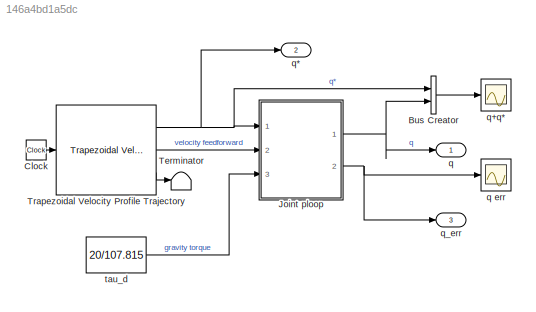
MODEL slx_146a4bd1a5dc
KIND model
CONFIG AbsTol = auto
CONFIG EnableMultiTasking = on
CONFIG FixedStep = auto
CONFIG InitFcn = G = 107.815;
CONFIG MaxStep = auto
CONFIG MinStep = auto
CONFIG PreLoadFcn = G = 107.815;
CONFIG RelTol = 1e-3
CONFIG SampleTimeConstraint = Unconstrained
CONFIG SolverName = ode15s
CONFIG StartTime = 0.0
CONFIG StopTime = 1
BLOCK [BusCreator] Bus Creator
  DisplayOption = bar
  InheritFromInputs = on
  Inputs = 2
  Ports = [2, 1]
BLOCK [Clock] Clock
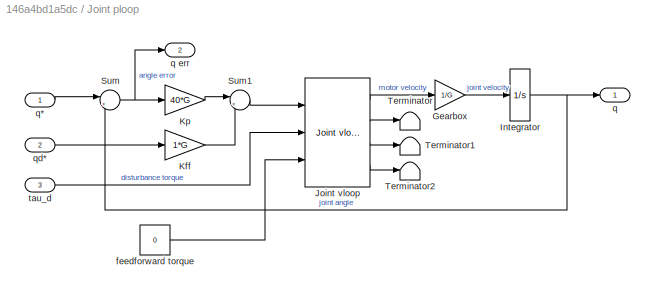
BLOCK [SubSystem] Joint ploop
  Ports = [3, 2]
  RequestExecContextInheritance = off
BLOCK [Gain] Joint ploop/Gearbox
  Gain = 1/G
BLOCK [Integrator] Joint ploop/Integrator
  Ports = [1, 1]
BLOCK [Reference] Joint ploop/Joint vloop  REF=roblocks/Joint vloop  (lib defined in mdl_2a292b13c81b, mdl_69400f8cfe22, +12 more)
  Ports = [3, 4]
  SourceBlock = roblocks/Joint vloop
BLOCK [Gain] Joint ploop/Kff
  Gain = 1*G
BLOCK [Gain] Joint ploop/Kp
  Gain = 40*G
BLOCK [Sum] Joint ploop/Sum
  Inputs = |+-
  Ports = [2, 1]
BLOCK [Sum] Joint ploop/Sum1
  Inputs = |++
  Ports = [2, 1]
BLOCK [Terminator] Joint ploop/Terminator
BLOCK [Terminator] Joint ploop/Terminator1
BLOCK [Terminator] Joint ploop/Terminator2
BLOCK [Constant] Joint ploop/feedforward torque
  Value = 0
BLOCK [Outport] Joint ploop/q
  VectorParamsAs1DForOutWhenUnconnected = off
BLOCK [Outport] Joint ploop/q err
  Port = 2
  VectorParamsAs1DForOutWhenUnconnected = off
BLOCK [Inport] Joint ploop/q*
BLOCK [Inport] Joint ploop/qd*
  Port = 2
BLOCK [Inport] Joint ploop/tau_d
  Port = 3
BLOCK [Terminator] Terminator
BLOCK [Reference] Trapezoidal Velocity Profile Trajectory  REF=robotcorelib/Trapezoidal Velocity Profile Trajectory
  Ports = [1, 3]
  SourceBlock = robotcorelib/Trapezoidal Velocity Profile Trajectory
  SourceProductBaseCode = RO,NV,RR,UV
  SourceType = robotics.slcore.internal.block.TrapVelTrajSys
BLOCK [Outport] q
  VectorParamsAs1DForOutWhenUnconnected = off
BLOCK [Scope] q err
  Floating = off
  NumInputPorts = 1
  Ports = [1]
  ScopeSpecificationString = Simulink.scopes.TimeScopeBlockCfg('CurrentConfiguration', extmgr.ConfigurationSet(extmgr.Configuration('Core','General UI',true),extmgr.Configuration('Core','Source UI',true),extmgr.Configuration('Sources','WiredSimulink',true,'DataLoggingSaveFormat','StructureWithTime','DataLoggingLimitDataPoints',true,'DataLoggingDecimation','1','DataLoggingDecimateData',true),extmgr.Configuration('Visuals','Tim...<+1816ch>
BLOCK [Outport] q*
  Port = 2
  VectorParamsAs1DForOutWhenUnconnected = off
BLOCK [Scope] q+q* 
  Floating = off
  NumInputPorts = 1
  Ports = [1]
  ScopeSpecificationString = Simulink.scopes.TimeScopeBlockCfg('CurrentConfiguration', extmgr.ConfigurationSet(extmgr.Configuration('Core','General UI',true),extmgr.Configuration('Core','Source UI',true),extmgr.Configuration('Sources','WiredSimulink',true,'DataLoggingVariableName','ScopeData1','DataLoggingSaveFormat','StructureWithTime','DataLoggingLimitDataPoints',true,'DataLoggingDecimation','1','DataLoggingDecimateData',tr...<+1769ch>
BLOCK [Outport] q_err
  Port = 3
  VectorParamsAs1DForOutWhenUnconnected = off
BLOCK [Constant] tau_d
  Value = 20/107.815
LINE Bus Creator:1 -> q+q* :1
LINE Clock:1 -> Trapezoidal Velocity Profile Trajectory:1
LINE Joint ploop/Gearbox:1 -> Joint ploop/Integrator:1
NET Joint ploop/Integrator:1 -> Joint ploop/Sum:2, Joint ploop/q:1
LINE Joint ploop/Joint vloop:1 -> Joint ploop/Gearbox:1
LINE Joint ploop/Joint vloop:2 -> Joint ploop/Terminator:1
LINE Joint ploop/Joint vloop:3 -> Joint ploop/Terminator1:1
LINE Joint ploop/Joint vloop:4 -> Joint ploop/Terminator2:1
LINE Joint ploop/Kff:1 -> Joint ploop/Sum1:2
LINE Joint ploop/Kp:1 -> Joint ploop/Sum1:1
LINE Joint ploop/Sum1:1 -> Joint ploop/Joint vloop:1
NET Joint ploop/Sum:1 -> Joint ploop/Kp:1, Joint ploop/q err:1
LINE Joint ploop/feedforward torque:1 -> Joint ploop/Joint vloop:3
LINE Joint ploop/q*:1 -> Joint ploop/Sum:1
LINE Joint ploop/qd*:1 -> Joint ploop/Kff:1
LINE Joint ploop/tau_d:1 -> Joint ploop/Joint vloop:2
NET Joint ploop:1 -> Bus Creator:2, q:1
NET Joint ploop:2 -> q err:1, q_err:1
NET Trapezoidal Velocity Profile Trajectory:1 -> Bus Creator:1, Joint ploop:1, q*:1
LINE Trapezoidal Velocity Profile Trajectory:2 -> Joint ploop:2
LINE Trapezoidal Velocity Profile Trajectory:3 -> Terminator:1
LINE tau_d:1 -> Joint ploop:3
note: NET lines group one-source signal fan-out (src -> all destinations, sorted); 1:1 wires keep LINE
